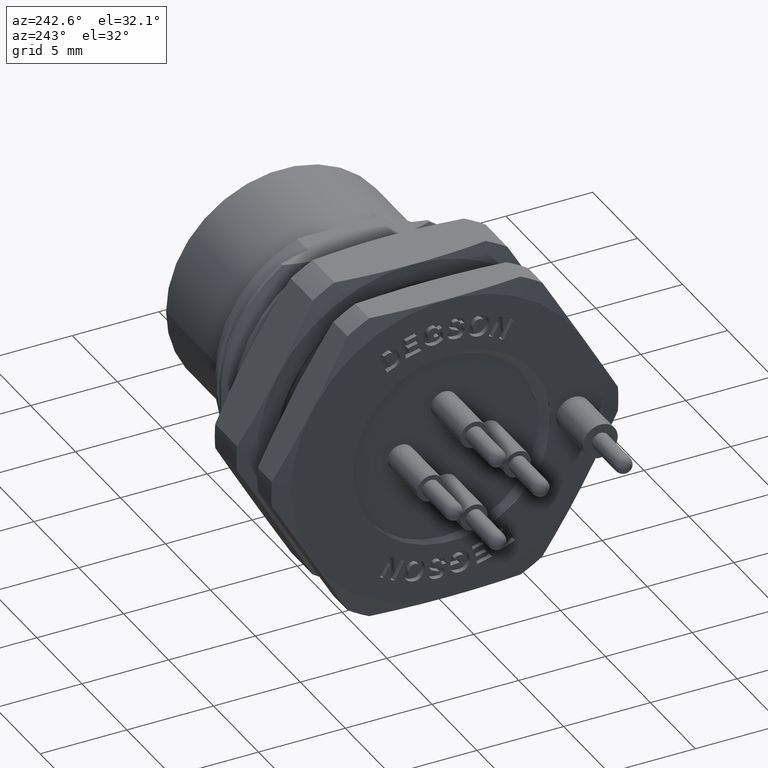
[diagram: clean part render]
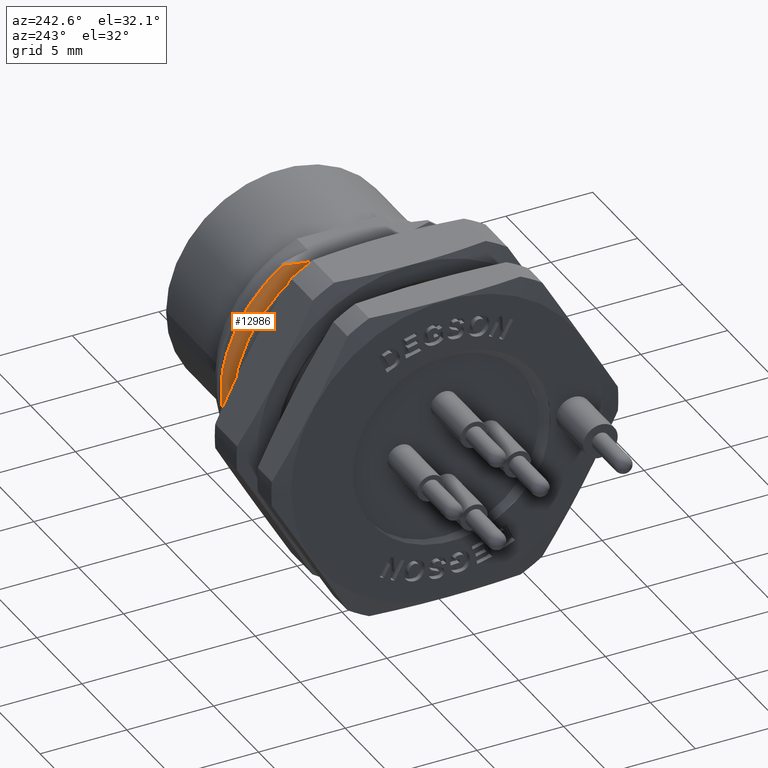
[diagram: same view with one face highlighted and labeled with its STEP entity id]
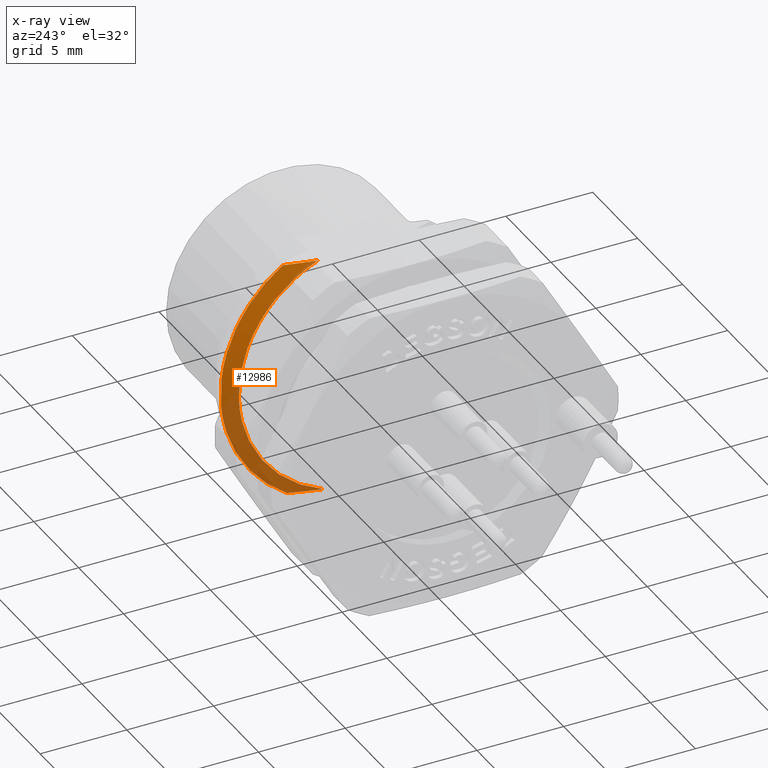
[diagram: x-ray of the same camera — body ghosted, the highlighted face saturated]
A machine part, auxiliary view. The second image highlights one B-rep face of the part: STEP entity #12986.
The next image is the same camera in x-ray: the body ghosted, the highlighted face saturated — about 44% of this face is hidden behind the body in this view.
In plain terms, the highlighted face is a freeform B-spline surface patch.
Its self-contained STEP definition (entity closure, byte-faithful):
#2355=CARTESIAN_POINT('',(6.971243093234E0,2.470811602261E0,-6.750037083200E0));
#2356=CARTESIAN_POINT('',(6.983312277438E0,2.814005988220E0,-6.624412773751E0));
#2357=CARTESIAN_POINT('',(7.007641619212E0,3.481125359359E0,-6.320684193784E0));
#2358=CARTESIAN_POINT('',(7.044029440445E0,4.400978515935E0,-5.718463798326E0));
#2359=CARTESIAN_POINT('',(7.080435246166E0,5.218443906427E0,-4.983686850288E0));
#2360=CARTESIAN_POINT('',(7.116838333207E0,5.914920144243E0,-4.133171627920E0));
#2361=CARTESIAN_POINT('',(7.153241586994E0,6.474088005017E0,-3.186773323708E0));
#2362=CARTESIAN_POINT('',(7.189644944628E0,6.883025705680E0,-2.166406606634E0));
#2363=CARTESIAN_POINT('',(7.226048229449E0,7.132225659047E0,-1.095768960426E0));
#2364=CARTESIAN_POINT('',(7.262451535700E0,7.215909850875E0,2.996738631738E-4));
#2365=CARTESIAN_POINT('',(7.298854841953E0,7.132134900293E0,1.096360651128E0));
#2366=CARTESIAN_POINT('',(7.335258109917E0,6.882844914620E0,2.166979215607E0));
#2367=CARTESIAN_POINT('',(7.371661572973E0,6.473826551151E0,3.187307347215E0));
#2368=CARTESIAN_POINT('',(7.408064273732E0,5.914566924310E0,4.133672088168E0));
#2369=CARTESIAN_POINT('',(7.444470030867E0,5.218059577055E0,4.984096838538E0));
#2370=CARTESIAN_POINT('',(7.480863614963E0,4.400430367500E0,5.718876752650E0));
#2371=CARTESIAN_POINT('',(7.517305460715E0,3.480717724356E0,6.320919089736E0));
#2372=CARTESIAN_POINT('',(7.541472855845E0,2.813809863823E0,6.624422442619E0));
#2373=CARTESIAN_POINT('',(7.553704157158E0,2.470792777507E0,6.749981852564E0));
#2375=CARTESIAN_POINT('',(7.971044894924E0,4.293871203201E0,6.749965992943E0));
#2376=CARTESIAN_POINT('',(7.911340620173E0,4.084316297517E0,6.749965992943E0));
#2377=CARTESIAN_POINT('',(7.800639682590E0,3.669916157658E0,6.750013450302E0));
#2378=CARTESIAN_POINT('',(7.660962514437E0,3.061682626089E0,6.750003934529E0));
#2379=CARTESIAN_POINT('',(7.586335582124E0,2.666167803900E0,6.749981852564E0));
#2380=CARTESIAN_POINT('',(7.553704157158E0,2.470792777507E0,6.749981852564E0));
#2382=CARTESIAN_POINT('',(6.971243093234E0,2.470811602261E0,-6.750037083200E0));
#2383=CARTESIAN_POINT('',(7.016021295145E0,2.665948073222E0,-6.750037083200E0));
#2384=CARTESIAN_POINT('',(7.114515987074E0,3.061081207133E0,-6.749963053666E0));
#2385=CARTESIAN_POINT('',(7.288744409309E0,3.669148979432E0,-6.750073687369E0));
#2386=CARTESIAN_POINT('',(7.421235841984E0,4.083897993409E0,-6.749852693695E0));
#2387=CARTESIAN_POINT('',(7.491575756137E0,4.293794886241E0,-6.749852693695E0));
#2389=CARTESIAN_POINT('',(7.491575756137E0,4.293794886241E0,-6.749852693695E0));
#2390=CARTESIAN_POINT('',(7.503907063998E0,4.641621566294E0,-6.528615833890E0));
#2391=CARTESIAN_POINT('',(7.528521706791E0,5.303219120368E0,-6.032554519241E0));
#2392=CARTESIAN_POINT('',(7.565419011777E0,6.168355729277E0,-5.144018515003E0));
#2393=CARTESIAN_POINT('',(7.602323089478E0,6.886707396569E0,-4.132716832386E0));
#2394=CARTESIAN_POINT('',(7.639224113447E0,7.441571326948E0,-3.023616422635E0));
#2395=CARTESIAN_POINT('',(7.676123364793E0,7.817277935950E0,-1.841672016990E0));
#2396=CARTESIAN_POINT('',(7.713019018211E0,8.008562018175E0,
-6.163642501018E-1));
#2397=CARTESIAN_POINT('',(7.749910209969E0,8.007494348688E0,6.234106582583E-1));
#2398=CARTESIAN_POINT('',(7.786795915596E0,7.815956761869E0,1.848411887087E0));
#2399=CARTESIAN_POINT('',(7.823674510590E0,7.439257360054E0,3.029168463629E0));
#2400=CARTESIAN_POINT('',(7.860546606420E0,6.883758722248E0,4.136969650905E0));
#2401=CARTESIAN_POINT('',(7.897405449818E0,6.166306756894E0,5.147138709541E0));
#2402=CARTESIAN_POINT('',(7.934270411420E0,5.301307284218E0,6.033436494634E0));
#2403=CARTESIAN_POINT('',(7.958799794975E0,4.641001239231E0,6.529025387478E0));
#2404=CARTESIAN_POINT('',(7.971044894924E0,4.293871203201E0,6.749965992943E0));
#9412=CARTESIAN_POINT('',(6.971243093234E0,2.470811602261E0,-6.750037083200E0));
#9413=VERTEX_POINT('',#9412);
#9414=VERTEX_POINT('',#2373);
#9490=CARTESIAN_POINT('',(7.971044894924E0,4.293871203201E0,6.749965992943E0));
#9491=VERTEX_POINT('',#9490);
#9492=VERTEX_POINT('',#2389);
#12926=CARTESIAN_POINT('',(7.542352670931E0,2.126658289639E0,6.824154359115E0));
#12927=CARTESIAN_POINT('',(7.714035089236E0,2.215126352471E0,7.108036221817E0));
#12928=CARTESIAN_POINT('',(7.885717507542E0,2.303594415303E0,7.391918084518E0));
#12929=CARTESIAN_POINT('',(8.057399925848E0,2.392062478136E0,7.675799947219E0));
#12930=CARTESIAN_POINT('',(7.538469597023E0,2.237675062656E0,6.789595664313E0));
#12931=CARTESIAN_POINT('',(7.710152015329E0,2.330761375114E0,7.072039900294E0));
#12932=CARTESIAN_POINT('',(7.881834433634E0,2.423847687572E0,7.354484136274E0));
#12933=CARTESIAN_POINT('',(8.053516851940E0,2.516934000030E0,7.636928372255E0));
#12934=CARTESIAN_POINT('',(7.527304256906E0,2.554471649722E0,6.682478401222E0));
#12935=CARTESIAN_POINT('',(7.698986675212E0,2.660736562854E0,6.960466605499E0));
#12936=CARTESIAN_POINT('',(7.870669093517E0,2.767001475986E0,7.238454809776E0));
#12937=CARTESIAN_POINT('',(8.042351511823E0,2.873266389117E0,7.516443014052E0));
#12938=CARTESIAN_POINT('',(7.485453938721E0,3.711639743988E0,6.198542720177E0));
#12939=CARTESIAN_POINT('',(7.657136357027E0,3.866042348147E0,6.456399409934E0));
#12940=CARTESIAN_POINT('',(7.828818775333E0,4.020444952305E0,6.714256099690E0));
#12941=CARTESIAN_POINT('',(8.000501193638E0,4.174847556464E0,6.972112789447E0));
#12942=CARTESIAN_POINT('',(7.416801716377E0,5.397335506210E0,4.955999333086E0));
#12943=CARTESIAN_POINT('',(7.588484134683E0,5.621862323237E0,5.162166756647E0));
#12944=CARTESIAN_POINT('',(7.760166552988E0,5.846389140264E0,5.368334180209E0));
#12945=CARTESIAN_POINT('',(7.931848971293E0,6.070915957291E0,5.574501603770E0));
#12946=CARTESIAN_POINT('',(7.324746782173E0,6.865048342836E0,2.562083373280E0));
#12947=CARTESIAN_POINT('',(7.496429200479E0,7.150631377533E0,2.668664930803E0));
#12948=CARTESIAN_POINT('',(7.668111618785E0,7.436214412231E0,2.775246488326E0));
#12949=CARTESIAN_POINT('',(7.839794037090E0,7.721797446928E0,2.881828045849E0));
#12950=CARTESIAN_POINT('',(7.232691847969E0,7.324606575996E0,
-2.080828350691E-1));
#12951=CARTESIAN_POINT('',(7.404374266275E0,7.629307033948E0,
-2.167389907989E-1));
#12952=CARTESIAN_POINT('',(7.576056684581E0,7.934007491900E0,
-2.253951465287E-1));
#12953=CARTESIAN_POINT('',(7.747739102886E0,8.238707949851E0,
-2.340513022585E-1));
#12954=CARTESIAN_POINT('',(7.140636913766E0,6.708522590199E0,
-2.947691404586E0));
#12955=CARTESIAN_POINT('',(7.312319332072E0,6.987594221445E0,
-3.070314089040E0));
#12956=CARTESIAN_POINT('',(7.484001750378E0,7.266665852690E0,
-3.192936773495E0));
#12957=CARTESIAN_POINT('',(7.655684168683E0,7.545737483936E0,
-3.315559457949E0));
#12958=CARTESIAN_POINT('',(7.048581979562E0,5.107270315654E0,
-5.254421936103E0));
#12959=CARTESIAN_POINT('',(7.220264397868E0,5.319730546505E0,
-5.473003610576E0));
#12960=CARTESIAN_POINT('',(7.391946816174E0,5.532190777355E0,
-5.691585285049E0));
#12961=CARTESIAN_POINT('',(7.563629234479E0,5.744651008205E0,
-5.910166959523E0));
#12962=CARTESIAN_POINT('',(6.984450131698E0,3.469211629295E0,
-6.323880140852E0));
#12963=CARTESIAN_POINT('',(7.156132550004E0,3.613529328978E0,
-6.586950812974E0));
#12964=CARTESIAN_POINT('',(7.327814968309E0,3.757847028661E0,
-6.850021485095E0));
#12965=CARTESIAN_POINT('',(7.499497386615E0,3.902164728344E0,
-7.113092157217E0));
#12966=CARTESIAN_POINT('',(6.947120181374E0,2.426279875878E0,
-6.726031737636E0));
#12967=CARTESIAN_POINT('',(7.118802599680E0,2.527212066785E0,
-7.005831741829E0));
#12968=CARTESIAN_POINT('',(7.290485017986E0,2.628144257692E0,
-7.285631746022E0));
#12969=CARTESIAN_POINT('',(7.462167436291E0,2.729076448599E0,
-7.565431750214E0));
#12970=CARTESIAN_POINT('',(6.940475209118E0,2.237752672618E0,
-6.789768704688E0));
#12971=CARTESIAN_POINT('',(7.112157627424E0,2.330842213606E0,
-7.072220139076E0));
#12972=CARTESIAN_POINT('',(7.283840045730E0,2.423931754594E0,
-7.354671573465E0));
#12973=CARTESIAN_POINT('',(7.455522464035E0,2.517021295582E0,
-7.637123007853E0));
#12974=CARTESIAN_POINT('',(6.936592128591E0,2.126737925970E0,
-6.824307435151E0));
#12975=CARTESIAN_POINT('',(7.108274546897E0,2.215209301628E0,
-7.108195665753E0));
#12976=CARTESIAN_POINT('',(7.279956965203E0,2.303680677286E0,
-7.392083896354E0));
#12977=CARTESIAN_POINT('',(7.451639383508E0,2.392152052944E0,
-7.675972126955E0));
#12978=B_SPLINE_SURFACE_WITH_KNOTS('',3,3,((#12926,#12927,#12928,#12929),
(#12930,#12931,#12932,#12933),(#12934,#12935,#12936,#12937),(#12938,#12939,
#12940,#12941),(#12942,#12943,#12944,#12945),(#12946,#12947,#12948,#12949),(
#12950,#12951,#12952,#12953),(#12954,#12955,#12956,#12957),(#12958,#12959,
#12960,#12961),(#12962,#12963,#12964,#12965),(#12966,#12967,#12968,#12969),(
#12970,#12971,#12972,#12973),(#12974,#12975,#12976,#12977)),.UNSPECIFIED.,.F.,
.F.,.F.,(4,1,1,1,1,1,1,1,1,1,4),(4,4),(-1.999996590807E-2,0.E0,
3.750767545803E-2,1.955521860225E-1,3.535966965874E-1,5.116412071518E-1,
6.696857177163E-1,8.277302282807E-1,9.857747388451E-1,1.E0,1.02E0),(
-3.662145974119E-3,1.004248849756E0),.UNSPECIFIED.);
#12979=ORIENTED_EDGE('',*,*,#12112,.T.);
#12980=ORIENTED_EDGE('',*,*,#12920,.F.);
#12981=ORIENTED_EDGE('',*,*,#11851,.T.);
#12983=ORIENTED_EDGE('',*,*,#12982,.T.);
#12984=EDGE_LOOP('',(#12979,#12980,#12981,#12983));
#12985=FACE_OUTER_BOUND('',#12984,.F.);
#12986=ADVANCED_FACE('',(#12985),#12978,.F.);
#2374=B_SPLINE_CURVE_WITH_KNOTS('',3,(#2355,#2356,#2357,#2358,#2359,#2360,#2361,
#2362,#2363,#2364,#2365,#2366,#2367,#2368,#2369,#2370,#2371,#2372,#2373),
.UNSPECIFIED.,.F.,.F.,(4,1,1,1,1,1,1,1,1,1,1,1,1,1,1,1,4),(0.E0,6.25E-2,1.25E-1,
1.875E-1,2.5E-1,3.125E-1,3.75E-1,4.375E-1,5.E-1,5.625E-1,6.25E-1,6.875E-1,
7.5E-1,8.125E-1,8.75E-1,9.375E-1,1.E0),.UNSPECIFIED.);
#2381=B_SPLINE_CURVE_WITH_KNOTS('',3,(#2375,#2376,#2377,#2378,#2379,#2380),
.UNSPECIFIED.,.F.,.F.,(4,1,1,4),(0.E0,3.333333333333E-1,6.666666666667E-1,1.E0),
.UNSPECIFIED.);
#2388=B_SPLINE_CURVE_WITH_KNOTS('',3,(#2382,#2383,#2384,#2385,#2386,#2387),
.UNSPECIFIED.,.F.,.F.,(4,1,1,4),(0.E0,3.333333333333E-1,6.666666666667E-1,1.E0),
.UNSPECIFIED.);
#2405=B_SPLINE_CURVE_WITH_KNOTS('',3,(#2389,#2390,#2391,#2392,#2393,#2394,#2395,
#2396,#2397,#2398,#2399,#2400,#2401,#2402,#2403,#2404),.UNSPECIFIED.,.F.,.F.,(4,
1,1,1,1,1,1,1,1,1,1,1,1,4),(0.E0,7.692307692308E-2,1.538461538462E-1,
2.307692307692E-1,3.076923076923E-1,3.846153846154E-1,4.615384615385E-1,
5.384615384615E-1,6.153846153846E-1,6.923076923077E-1,7.692307692308E-1,
8.461538461538E-1,9.230769230769E-1,1.E0),.UNSPECIFIED.);
#11851=EDGE_CURVE('',#9413,#9492,#2388,.T.);
#12112=EDGE_CURVE('',#9491,#9414,#2381,.T.);
#12920=EDGE_CURVE('',#9413,#9414,#2374,.T.);
#12982=EDGE_CURVE('',#9492,#9491,#2405,.T.);